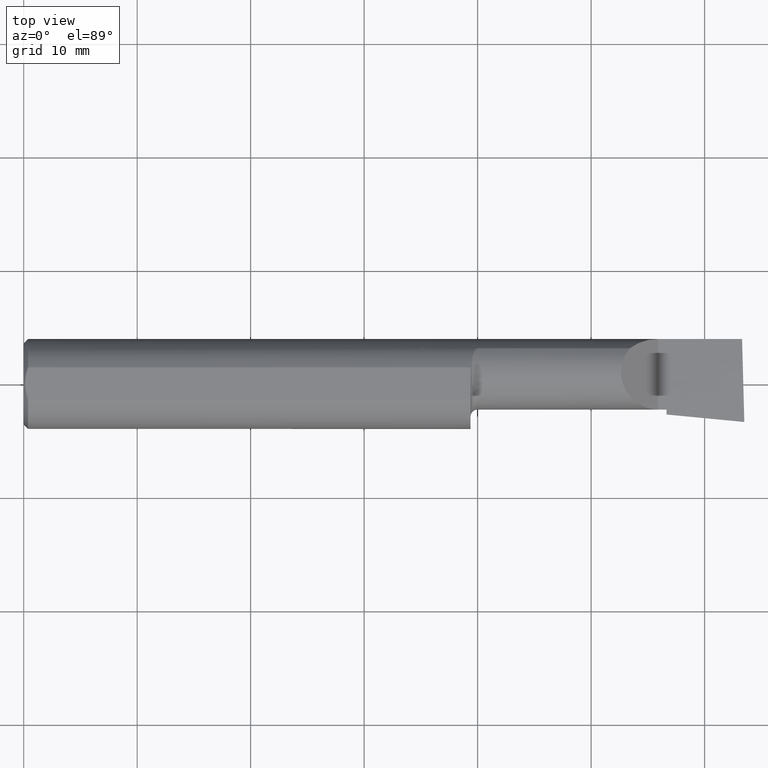
[diagram: clean part render]
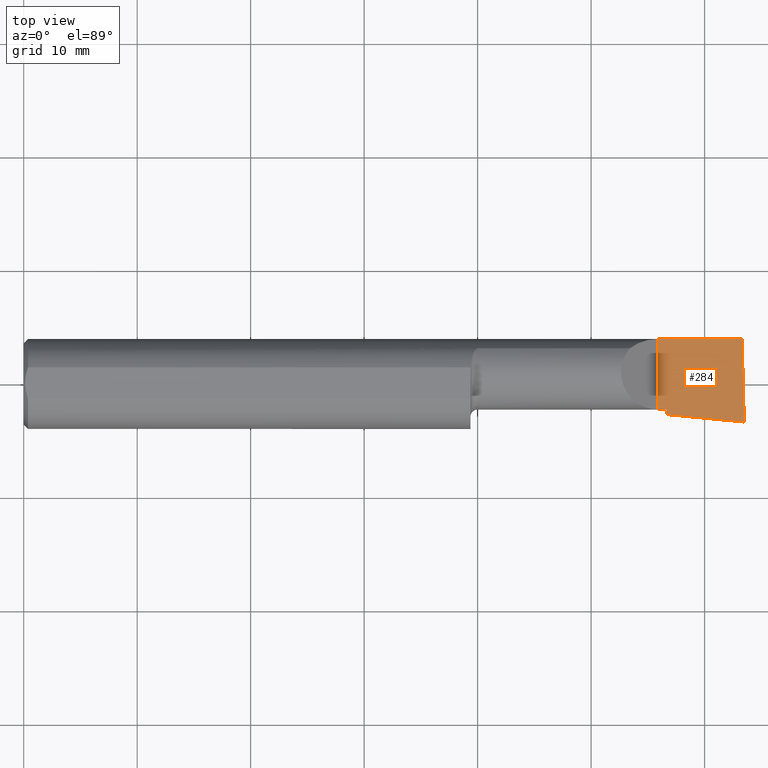
[diagram: same view with one face highlighted and labeled with its STEP entity id]
A machine part, top view. The second image highlights one B-rep face of the part: STEP entity #284.
In plain terms, the highlighted planar face has unit normal (-0, 0, -1).
Its self-contained STEP definition (entity closure, byte-faithful):
#2 = CARTESIAN_POINT ( 'NONE',  ( 2.500000000000000000, -0.2500000000000000555, 6.829619984160658046E-17 ) ) ;
#11 = VERTEX_POINT ( 'NONE', #381 ) ;
#23 = LINE ( 'NONE', #131, #385 ) ;
#25 = VERTEX_POINT ( 'NONE', #586 ) ;
#38 = ORIENTED_EDGE ( 'NONE', *, *, #464, .T. ) ;
#49 = CARTESIAN_POINT ( 'NONE',  ( 2.511267271176985005, -0.1329849148174156448, 6.718165849964441477E-17 ) ) ;
#77 = ORIENTED_EDGE ( 'NONE', *, *, #151, .T. ) ;
#99 = PLANE ( 'NONE',  #532 ) ;
#116 = CARTESIAN_POINT ( 'NONE',  ( 2.229999999999999982, -0.1059019569866646721, 9.497440290473414864E-17 ) ) ;
#123 = VERTEX_POINT ( 'NONE', #363 ) ;
#127 = EDGE_CURVE ( 'NONE', #11, #123, #217, .T. ) ;
#130 = DIRECTION ( 'NONE',  ( -6.829619984160658816E-18, -1.000000000000000000, 6.755756298638184848E-34 ) ) ;
#131 = CARTESIAN_POINT ( 'NONE',  ( -8.735083959741170053E-19, -0.08890000000000000679, 3.155924005931204823E-16 ) ) ;
#134 = VECTOR ( 'NONE', #492, 39.37007874015748143 ) ;
#148 = VERTEX_POINT ( 'NONE', #195 ) ;
#151 = EDGE_CURVE ( 'NONE', #624, #689, #298, .T. ) ;
#168 = CARTESIAN_POINT ( 'NONE',  ( 3.121792066109142165E-32, 0.1560999999999999333, 3.155924005931204823E-16 ) ) ;
#185 = DIRECTION ( 'NONE',  ( -0.000000000000000000, 1.000000000000000000, -0.000000000000000000 ) ) ;
#186 = VECTOR ( 'NONE', #130, 39.37007874015748143 ) ;
#190 = CARTESIAN_POINT ( 'NONE',  ( 2.229999999999999982, -0.2500000000000000555, 9.500418952277011559E-17 ) ) ;
#195 = CARTESIAN_POINT ( 'NONE',  ( 2.500000000000000000, -0.1319000000000001560, 8.537024980200822558E-17 ) ) ;
#217 = LINE ( 'NONE', #654, #699 ) ;
#226 = LINE ( 'NONE', #49, #369 ) ;
#253 = ORIENTED_EDGE ( 'NONE', *, *, #565, .T. ) ;
#254 = EDGE_CURVE ( 'NONE', #689, #148, #226, .T. ) ;
#267 = LINE ( 'NONE', #168, #134 ) ;
#275 = EDGE_CURVE ( 'NONE', #123, #25, #267, .T. ) ;
#284 = ADVANCED_FACE ( 'NONE', ( #661 ), #99, .F. ) ;
#298 = LINE ( 'NONE', #190, #186 ) ;
#300 = EDGE_LOOP ( 'NONE', ( #673, #253, #677, #355, #38, #77 ) ) ;
#307 = CARTESIAN_POINT ( 'NONE',  ( 2.503161552210378282, -0.2499153041001321018, 6.798346390156494500E-17 ) ) ;
#322 = DIRECTION ( 'NONE',  ( 0.9953961983671787417, -0.09584575252022418945, -9.831095531899268478E-17 ) ) ;
#355 = ORIENTED_EDGE ( 'NONE', *, *, #127, .F. ) ;
#363 = CARTESIAN_POINT ( 'NONE',  ( 2.200000000000000178, 0.1560999999999997667, 9.797174393178826150E-17 ) ) ;
#369 = VECTOR ( 'NONE', #322, 39.37007874015748854 ) ;
#381 = CARTESIAN_POINT ( 'NONE',  ( 2.200000000000000178, -0.08890000000000010394, 9.797174393178826150E-17 ) ) ;
#385 = VECTOR ( 'NONE', #399, 39.37007874015748143 ) ;
#386 = DIRECTION ( 'NONE',  ( -1.000000000000000000, 0.000000000000000000, 9.891848030060559526E-17 ) ) ;
#399 = DIRECTION ( 'NONE',  ( 1.000000000000000000, -6.829619984160658046E-18, 0.000000000000000000 ) ) ;
#464 = EDGE_CURVE ( 'NONE', #11, #624, #23, .T. ) ;
#485 = LINE ( 'NONE', #307, #653 ) ;
#492 = DIRECTION ( 'NONE',  ( 1.000000000000000000, 0.000000000000000000, 0.000000000000000000 ) ) ;
#532 = AXIS2_PLACEMENT_3D ( 'NONE', #2, #596, #386 ) ;
#565 = EDGE_CURVE ( 'NONE', #148, #25, #485, .T. ) ;
#585 = CARTESIAN_POINT ( 'NONE',  ( 2.229999999999999982, -0.08890000000000000679, 0.000000000000000000 ) ) ;
#586 = CARTESIAN_POINT ( 'NONE',  ( 2.492284669827090404, 0.1560999999999998500, 6.904452464043948710E-17 ) ) ;
#596 = DIRECTION ( 'NONE',  ( -9.891848030060559526E-17, 0.000000000000000000, -1.000000000000000000 ) ) ;
#624 = VERTEX_POINT ( 'NONE', #585 ) ;
#640 = DIRECTION ( 'NONE',  ( -0.02677973311239118664, 0.9996413586354002678, 2.612414329932813452E-18 ) ) ;
#653 = VECTOR ( 'NONE', #640, 39.37007874015748854 ) ;
#654 = CARTESIAN_POINT ( 'NONE',  ( 2.200000000000000178, -0.2500000000000000555, 9.797174393178826150E-17 ) ) ;
#661 = FACE_OUTER_BOUND ( 'NONE', #300, .T. ) ;
#673 = ORIENTED_EDGE ( 'NONE', *, *, #254, .T. ) ;
#677 = ORIENTED_EDGE ( 'NONE', *, *, #275, .F. ) ;
#689 = VERTEX_POINT ( 'NONE', #116 ) ;
#699 = VECTOR ( 'NONE', #185, 39.37007874015748143 ) ;